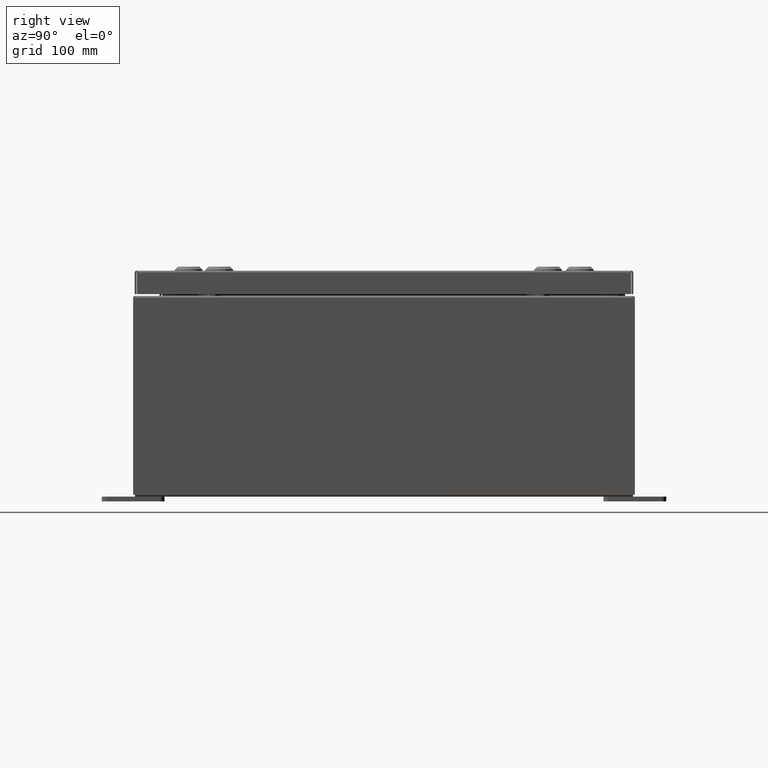
[diagram: clean part render]
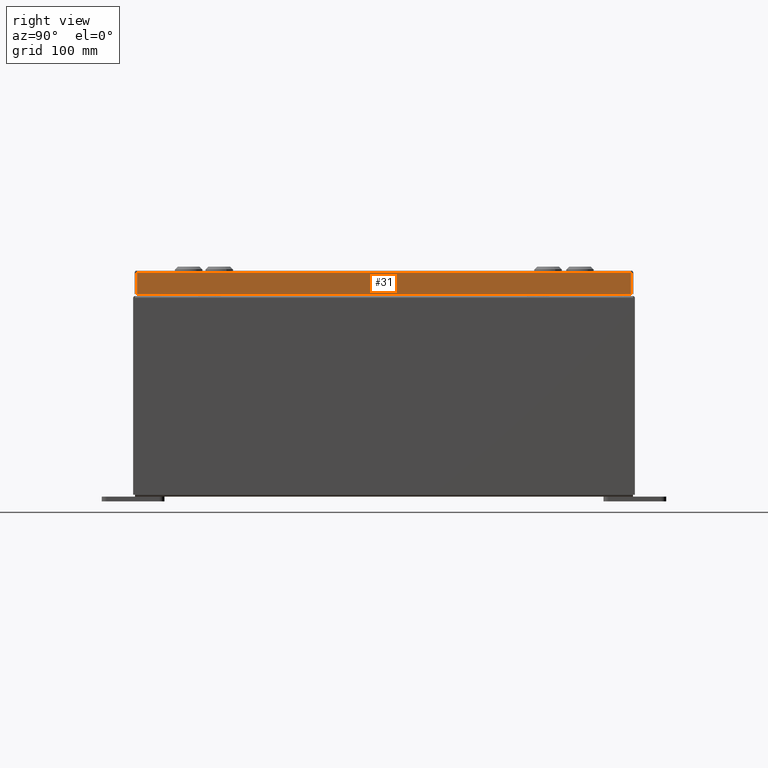
[diagram: same view with one face highlighted and labeled with its STEP entity id]
A machine part, right view. The second image highlights one B-rep face of the part: STEP entity #31.
In plain terms, the highlighted planar face has unit normal (1, 0, 0).
Its self-contained STEP definition (entity closure, byte-faithful):
#31 = ADVANCED_FACE ( 'NONE', ( #49138 ), #27777, .T. ) ;
#1781 = CARTESIAN_POINT ( 'NONE',  ( 7.937500000000000000, 0.0000000000000000000, -0.08769999999999997200 ) ) ;
#4507 = VERTEX_POINT ( 'NONE', #47896 ) ;
#6015 = ORIENTED_EDGE ( 'NONE', *, *, #46833, .F. ) ;
#6746 = EDGE_CURVE ( 'NONE', #12442, #4507, #60138, .T. ) ;
#11621 = LINE ( 'NONE', #44647, #60351 ) ;
#12442 = VERTEX_POINT ( 'NONE', #41408 ) ;
#18232 = DIRECTION ( 'NONE',  ( 3.798629886902798700E-015, 0.0000000000000000000, -1.000000000000000000 ) ) ;
#19541 = CARTESIAN_POINT ( 'NONE',  ( 7.937500000000003600, 9.848657864376273000, -0.9376999999999997600 ) ) ;
#23589 = LINE ( 'NONE', #33846, #35007 ) ;
#24626 = CARTESIAN_POINT ( 'NONE',  ( 7.937500000000000000, 9.848657864376265900, 9.918524867554336000E-014 ) ) ;
#25052 = VECTOR ( 'NONE', #58628, 39.37007874015748100 ) ;
#26544 = LINE ( 'NONE', #24626, #25052 ) ;
#27279 = ORIENTED_EDGE ( 'NONE', *, *, #62225, .F. ) ;
#27777 = PLANE ( 'NONE',  #39415 ) ;
#28749 = ORIENTED_EDGE ( 'NONE', *, *, #60281, .T. ) ;
#32693 = CARTESIAN_POINT ( 'NONE',  ( 7.937500000000000000, 0.0000000000000000000, 3.041243838330255000E-014 ) ) ;
#33846 = CARTESIAN_POINT ( 'NONE',  ( 7.937500000000000000, -9.848657864376271200, -0.07469999999999972500 ) ) ;
#35007 = VECTOR ( 'NONE', #63004, 39.37007874015748100 ) ;
#35873 = DIRECTION ( 'NONE',  ( 0.0000000000000000000, -1.000000000000000000, 0.0000000000000000000 ) ) ;
#39379 = CARTESIAN_POINT ( 'NONE',  ( 7.937500000000003600, -9.848657864376264100, -0.9376999999999997600 ) ) ;
#39415 = AXIS2_PLACEMENT_3D ( 'NONE', #32693, #47334, #18232 ) ;
#41408 = CARTESIAN_POINT ( 'NONE',  ( 7.937500000000000000, 9.848657864376269400, -0.08769999999999997200 ) ) ;
#44647 = CARTESIAN_POINT ( 'NONE',  ( 7.937500000000003600, -9.937500000000001800, -0.9376999999999997600 ) ) ;
#45693 = VECTOR ( 'NONE', #35873, 39.37007874015748100 ) ;
#46833 = EDGE_CURVE ( 'NONE', #56162, #59086, #11621, .T. ) ;
#47334 = DIRECTION ( 'NONE',  ( 1.000000000000000000, 0.0000000000000000000, 3.798629886902798700E-015 ) ) ;
#47896 = CARTESIAN_POINT ( 'NONE',  ( 7.937500000000000000, -9.848657864376271200, -0.08769999999999997200 ) ) ;
#49138 = FACE_OUTER_BOUND ( 'NONE', #52408, .T. ) ;
#49299 = DIRECTION ( 'NONE',  ( 0.0000000000000000000, -1.000000000000000000, 0.0000000000000000000 ) ) ;
#52408 = EDGE_LOOP ( 'NONE', ( #27279, #6015, #28749, #56722 ) ) ;
#56162 = VERTEX_POINT ( 'NONE', #19541 ) ;
#56722 = ORIENTED_EDGE ( 'NONE', *, *, #6746, .T. ) ;
#58628 = DIRECTION ( 'NONE',  ( -3.798629886902798700E-015, -6.982962677686267500E-015, 1.000000000000000000 ) ) ;
#59086 = VERTEX_POINT ( 'NONE', #39379 ) ;
#60138 = LINE ( 'NONE', #1781, #45693 ) ;
#60281 = EDGE_CURVE ( 'NONE', #56162, #12442, #26544, .T. ) ;
#60351 = VECTOR ( 'NONE', #49299, 39.37007874015748100 ) ;
#62225 = EDGE_CURVE ( 'NONE', #59086, #4507, #23589, .T. ) ;
#63004 = DIRECTION ( 'NONE',  ( -3.798629886902798700E-015, -6.982962677686267500E-015, 1.000000000000000000 ) ) ;